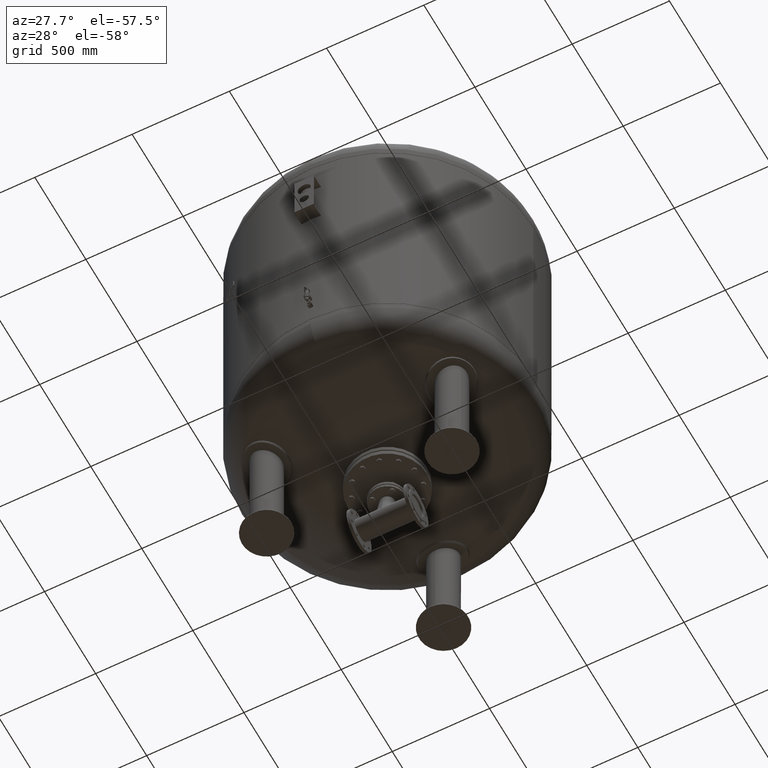
[diagram: clean part render]
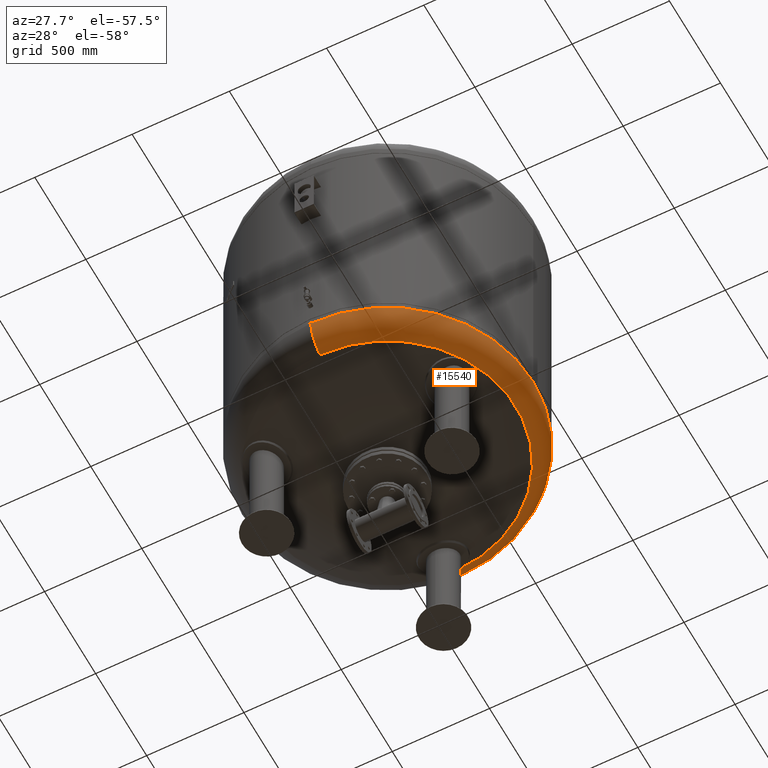
[diagram: same view with one face highlighted and labeled with its STEP entity id]
A machine part, auxiliary view. The second image highlights one B-rep face of the part: STEP entity #15540.
In plain terms, the highlighted toroidal blend (fillet) surface has major radius 591 mm and minor (blend) radius 159 mm.
Its self-contained STEP definition (entity closure, byte-faithful):
#15426=CARTESIAN_POINT('',(750.0,3.761120E-014,785.237667415898160));
#15427=VERTEX_POINT('',#15426);
#15434=CARTESIAN_POINT('',(-1.628998E-013,750.0,785.237667415898270));
#15435=VERTEX_POINT('',#15434);
#15436=CARTESIAN_POINT('',(-5.075605E-014,-5.423428E-014,785.237667415898160));
#15437=DIRECTION('',(0.0,0.0,1.0));
#15438=DIRECTION('',(-1.0,0.0,0.0));
#15439=AXIS2_PLACEMENT_3D('',#15436,#15437,#15438);
#15440=CIRCLE('',#15439,750.0);
#15441=EDGE_CURVE('',#15427,#15435,#15440,.T.);
#15458=CARTESIAN_POINT('',(-7.105427E-014,-750.0,785.237667415898040));
#15459=VERTEX_POINT('',#15458);
#15460=CARTESIAN_POINT('',(-4.647817E-014,-660.606666666666800,642.283437133770350));
#15461=VERTEX_POINT('',#15460);
#15462=CARTESIAN_POINT('',(-7.105427E-014,-591.0,785.237667415898040));
#15463=DIRECTION('',(1.0,0.0,0.0));
#15464=DIRECTION('',(0.0,-1.0,0.0));
#15465=AXIS2_PLACEMENT_3D('',#15462,#15463,#15464);
#15466=CIRCLE('',#15465,159.0);
#15467=EDGE_CURVE('',#15459,#15461,#15466,.T.);
#15477=CARTESIAN_POINT('',(-1.273765E-013,660.606666666666800,642.283437133770800));
#15478=VERTEX_POINT('',#15477);
#15479=CARTESIAN_POINT('',(-1.434285E-013,591.0,785.237667415898270));
#15480=DIRECTION('',(-1.0,0.0,0.0));
#15481=DIRECTION('',(0.0,1.0,0.0));
#15482=AXIS2_PLACEMENT_3D('',#15479,#15480,#15481);
#15483=CIRCLE('',#15482,159.0);
#15484=EDGE_CURVE('',#15435,#15478,#15483,.T.);
#15512=CARTESIAN_POINT('',(-2.617994E-014,-2.797401E-014,642.283437133770580));
#15513=DIRECTION('',(0.0,0.0,1.0));
#15514=DIRECTION('',(-1.0,0.0,0.0));
#15515=AXIS2_PLACEMENT_3D('',#15512,#15513,#15514);
#15516=CIRCLE('',#15515,660.606666666666800);
#15517=EDGE_CURVE('',#15461,#15478,#15516,.T.);
#15522=CARTESIAN_POINT('',(-7.105427E-014,-5.423428E-014,785.237667415898160));
#15523=DIRECTION('',(-1.719159E-016,-1.836970E-016,1.0));
#15524=DIRECTION('',(0.0,-1.0,0.0));
#15525=AXIS2_PLACEMENT_3D('',#15522,#15523,#15524);
#15526=TOROIDAL_SURFACE('',#15525,591.0,159.0);
#15527=ORIENTED_EDGE('',*,*,#15467,.T.);
#15528=ORIENTED_EDGE('',*,*,#15517,.T.);
#15529=ORIENTED_EDGE('',*,*,#15484,.F.);
#15530=ORIENTED_EDGE('',*,*,#15441,.F.);
#15531=CARTESIAN_POINT('',(-5.075605E-014,-5.423428E-014,785.237667415898160));
#15532=DIRECTION('',(0.0,0.0,1.0));
#15533=DIRECTION('',(-1.0,0.0,0.0));
#15534=AXIS2_PLACEMENT_3D('',#15531,#15532,#15533);
#15535=CIRCLE('',#15534,750.0);
#15536=EDGE_CURVE('',#15459,#15427,#15535,.T.);
#15537=ORIENTED_EDGE('',*,*,#15536,.F.);
#15538=EDGE_LOOP('',(#15527,#15528,#15529,#15530,#15537));
#15539=FACE_OUTER_BOUND('',#15538,.T.);
#15540=ADVANCED_FACE('',(#15539),#15526,.T.);